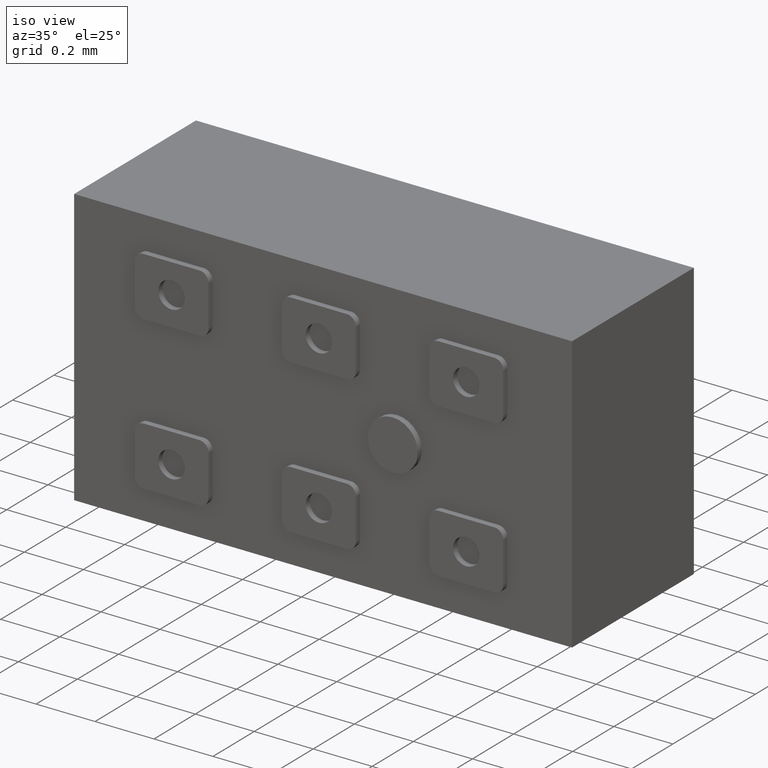
[diagram: clean part render]
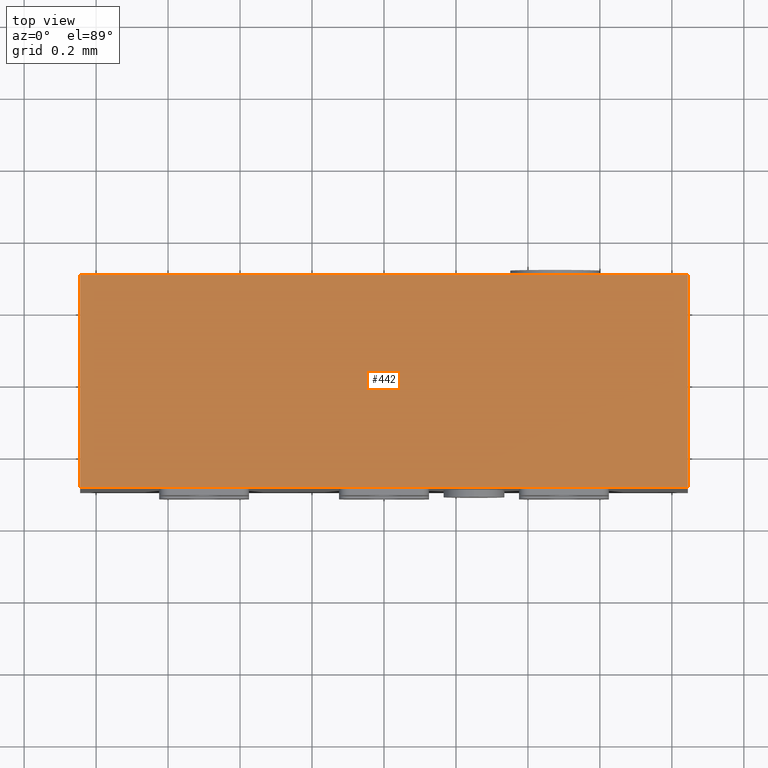
[diagram: tour spotlight — one face highlighted and labeled with its STEP entity id]
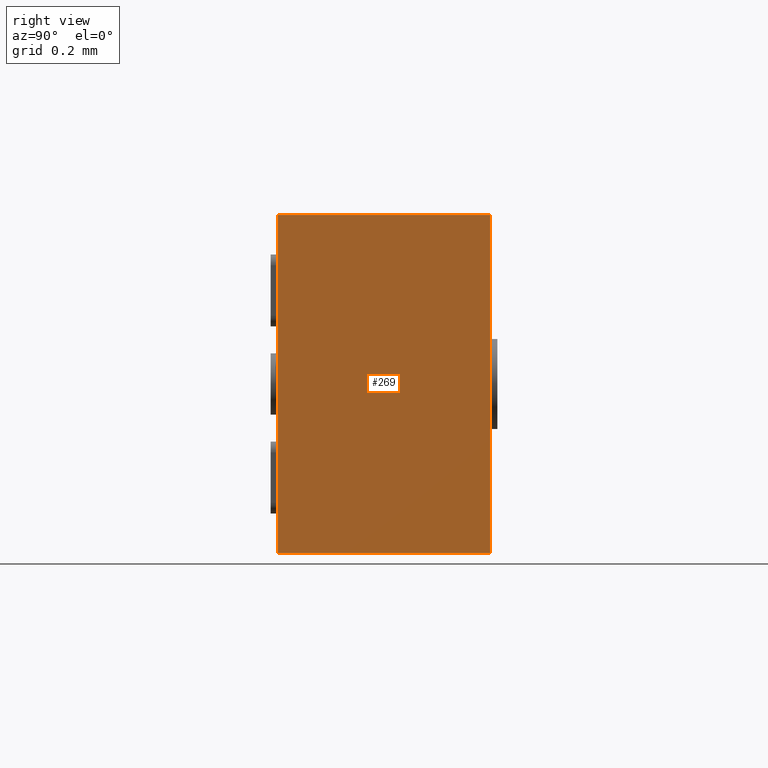
[diagram: tour spotlight — one face highlighted and labeled with its STEP entity id]
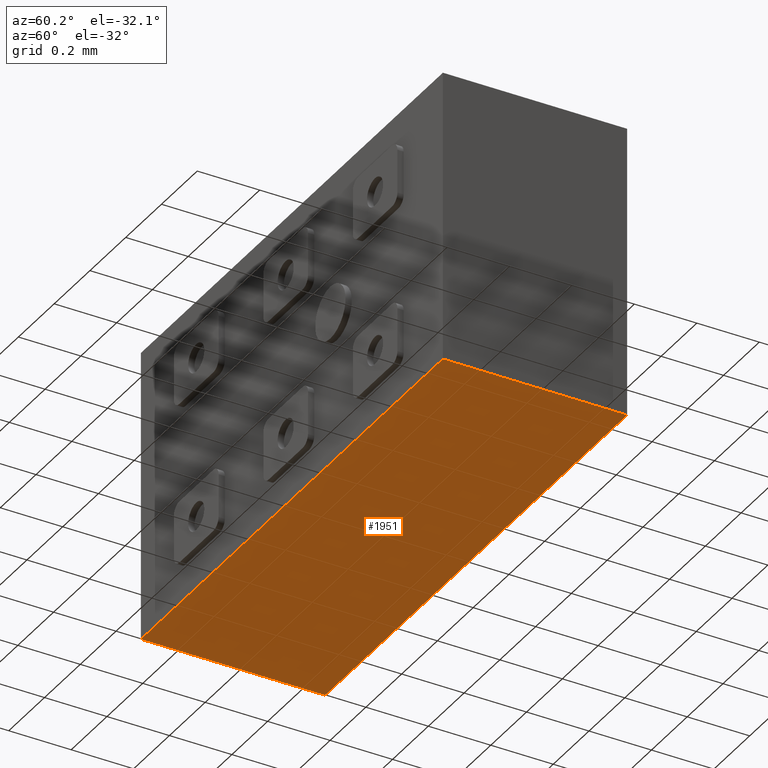
[diagram: tour spotlight — one face highlighted and labeled with its STEP entity id]
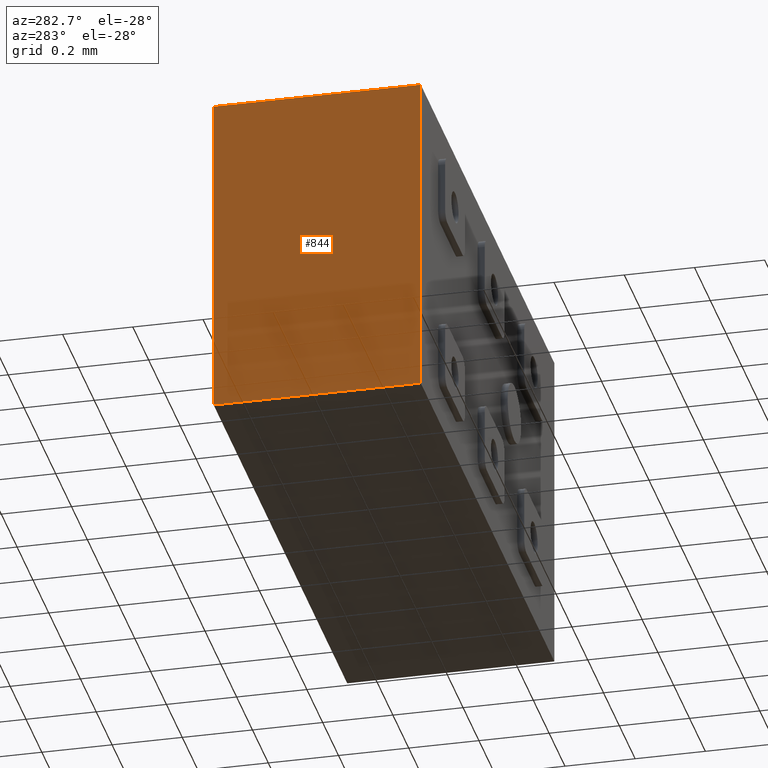
[diagram: tour spotlight — one face highlighted and labeled with its STEP entity id]
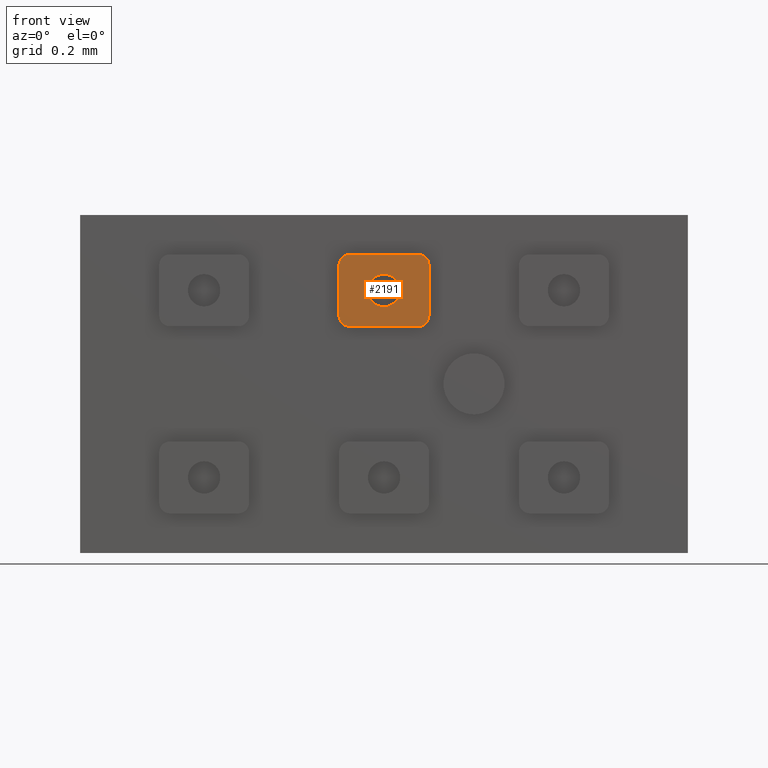
[diagram: tour spotlight — one face highlighted and labeled with its STEP entity id]
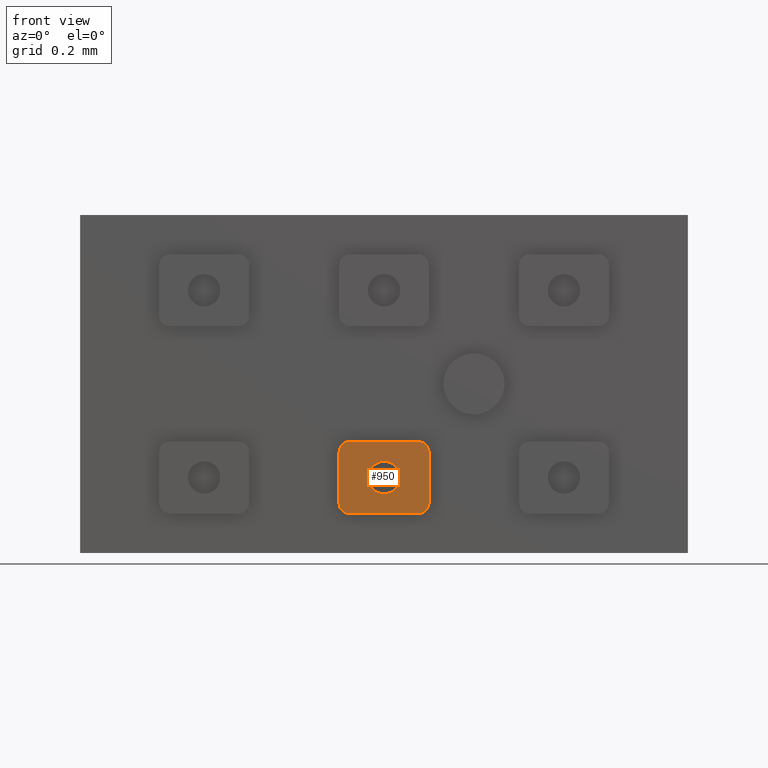
[diagram: tour spotlight — one face highlighted and labeled with its STEP entity id]
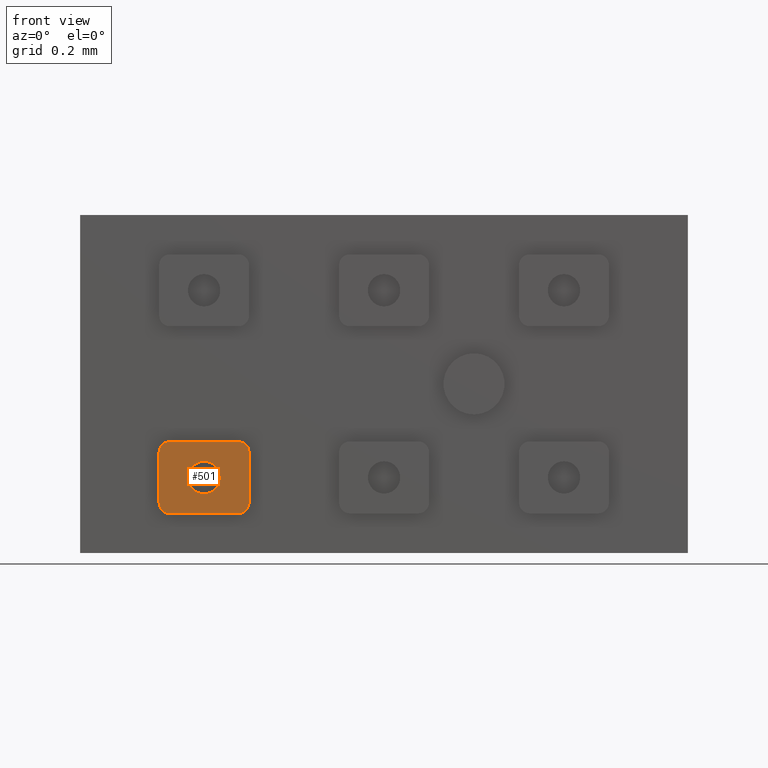
[diagram: tour spotlight — one face highlighted and labeled with its STEP entity id]
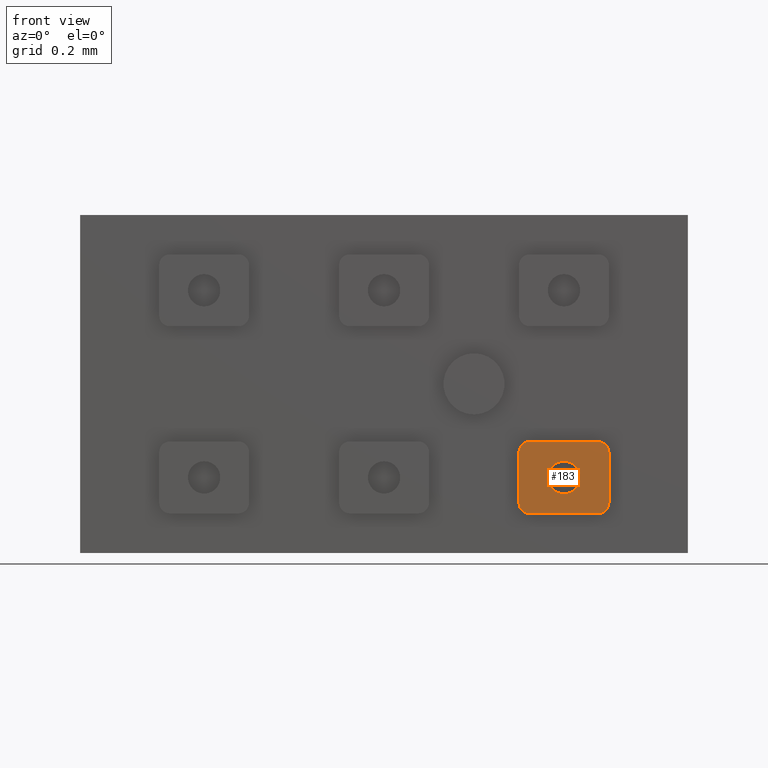
[diagram: tour spotlight — one face highlighted and labeled with its STEP entity id]
A machine part: a face-by-face anatomy tour. The part has 84 B-rep faces; the first image is the clean iso view, then the 8 largest visible faces are spotlighted one at a time (largest first), each with its STEP entity span.

Face 1 — top view, entity #442. In plain terms, the highlighted planar face has unit normal (-0, 0, -1).
Definition (entity closure, byte-faithful):
#56 = CARTESIAN_POINT ( 'NONE',  ( -0.8445000000000001394, 0.2949999999999999845, 0.4695000000000000284 ) ) ;
#275 = CARTESIAN_POINT ( 'NONE',  ( 0.8444999999999998064, -0.2949999999999999845, 0.4694999999999998619 ) ) ;
#442 = ADVANCED_FACE ( 'NONE', ( #2563 ), #1575, .F. ) ;
#524 = LINE ( 'NONE', #1510, #2504 ) ;
#548 = AXIS2_PLACEMENT_3D ( 'NONE', #2540, #1550, #1167 ) ;
#627 = CARTESIAN_POINT ( 'NONE',  ( -0.8445000000000001394, -0.2949999999999999845, 0.4695000000000000284 ) ) ;
#657 = LINE ( 'NONE', #275, #2243 ) ;
#694 = ORIENTED_EDGE ( 'NONE', *, *, #919, .T. ) ;
#791 = VERTEX_POINT ( 'NONE', #627 ) ;
#830 = ORIENTED_EDGE ( 'NONE', *, *, #2158, .T. ) ;
#893 = EDGE_LOOP ( 'NONE', ( #694, #2554, #2370, #830 ) ) ;
#919 = EDGE_CURVE ( 'NONE', #791, #1594, #657, .T. ) ;
#965 = CARTESIAN_POINT ( 'NONE',  ( 0.8444999999999998064, 0.2949999999999999845, 0.4694999999999998619 ) ) ;
#981 = EDGE_CURVE ( 'NONE', #1401, #1615, #524, .T. ) ;
#1004 = DIRECTION ( 'NONE',  ( -0.000000000000000000, -1.000000000000000000, -0.000000000000000000 ) ) ;
#1167 = DIRECTION ( 'NONE',  ( -1.000000000000000000, 0.000000000000000000, 9.628793716567535879E-17 ) ) ;
#1251 = DIRECTION ( 'NONE',  ( 1.000000000000000000, -0.000000000000000000, -9.628793716567534647E-17 ) ) ;
#1300 = DIRECTION ( 'NONE',  ( 1.000000000000000000, -0.000000000000000000, -9.628793716567534647E-17 ) ) ;
#1401 = VERTEX_POINT ( 'NONE', #56 ) ;
#1477 = CARTESIAN_POINT ( 'NONE',  ( 0.8444999999999998064, 0.2949999999999999845, 0.4694999999999998619 ) ) ;
#1510 = CARTESIAN_POINT ( 'NONE',  ( 0.8444999999999998064, 0.2949999999999999845, 0.4694999999999998619 ) ) ;
#1550 = DIRECTION ( 'NONE',  ( -9.628793716567535879E-17, 0.000000000000000000, -1.000000000000000000 ) ) ;
#1573 = LINE ( 'NONE', #2367, #2245 ) ;
#1575 = PLANE ( 'NONE',  #548 ) ;
#1594 = VERTEX_POINT ( 'NONE', #2057 ) ;
#1595 = VECTOR ( 'NONE', #2264, 1000.000000000000000 ) ;
#1615 = VERTEX_POINT ( 'NONE', #965 ) ;
#1677 = LINE ( 'NONE', #1477, #1595 ) ;
#2057 = CARTESIAN_POINT ( 'NONE',  ( 0.8444999999999998064, -0.2949999999999999845, 0.4694999999999998619 ) ) ;
#2158 = EDGE_CURVE ( 'NONE', #1401, #791, #1573, .T. ) ;
#2243 = VECTOR ( 'NONE', #1251, 1000.000000000000000 ) ;
#2245 = VECTOR ( 'NONE', #1004, 1000.000000000000000 ) ;
#2264 = DIRECTION ( 'NONE',  ( -0.000000000000000000, -1.000000000000000000, -0.000000000000000000 ) ) ;
#2367 = CARTESIAN_POINT ( 'NONE',  ( -0.8445000000000001394, 0.2949999999999999845, 0.4695000000000000284 ) ) ;
#2370 = ORIENTED_EDGE ( 'NONE', *, *, #981, .F. ) ;
#2504 = VECTOR ( 'NONE', #1300, 1000.000000000000000 ) ;
#2535 = EDGE_CURVE ( 'NONE', #1615, #1594, #1677, .T. ) ;
#2540 = CARTESIAN_POINT ( 'NONE',  ( 0.8444999999999998064, 0.2949999999999999845, 0.4694999999999998619 ) ) ;
#2554 = ORIENTED_EDGE ( 'NONE', *, *, #2535, .F. ) ;
#2563 = FACE_OUTER_BOUND ( 'NONE', #893, .T. ) ;

Face 2 — right view, entity #269. In plain terms, the highlighted planar face has unit normal (-1, 0, -0).
Definition (entity closure, byte-faithful):
#107 = VECTOR ( 'NONE', #1616, 1000.000000000000000 ) ;
#199 = VECTOR ( 'NONE', #1206, 1000.000000000000000 ) ;
#269 = ADVANCED_FACE ( 'NONE', ( #1887 ), #2087, .F. ) ;
#401 = ORIENTED_EDGE ( 'NONE', *, *, #1503, .F. ) ;
#445 = CARTESIAN_POINT ( 'NONE',  ( 0.8444999999999998064, -0.2949999999999999845, 0.4694999999999998619 ) ) ;
#558 = DIRECTION ( 'NONE',  ( -1.154634901475510774E-16, 0.000000000000000000, 1.000000000000000000 ) ) ;
#659 = CARTESIAN_POINT ( 'NONE',  ( 0.8444999999999999174, 0.2949999999999999845, -0.4695000000000001394 ) ) ;
#768 = CARTESIAN_POINT ( 'NONE',  ( 0.8444999999999999174, -0.2949999999999999845, -0.4695000000000001394 ) ) ;
#771 = ORIENTED_EDGE ( 'NONE', *, *, #1853, .T. ) ;
#809 = EDGE_LOOP ( 'NONE', ( #771, #2109, #401, #1087 ) ) ;
#965 = CARTESIAN_POINT ( 'NONE',  ( 0.8444999999999998064, 0.2949999999999999845, 0.4694999999999998619 ) ) ;
#1087 = ORIENTED_EDGE ( 'NONE', *, *, #2535, .T. ) ;
#1206 = DIRECTION ( 'NONE',  ( 1.154634901475510774E-16, 0.000000000000000000, -1.000000000000000000 ) ) ;
#1258 = LINE ( 'NONE', #445, #107 ) ;
#1336 = DIRECTION ( 'NONE',  ( -1.000000000000000000, 0.000000000000000000, -1.154634901475510774E-16 ) ) ;
#1477 = CARTESIAN_POINT ( 'NONE',  ( 0.8444999999999998064, 0.2949999999999999845, 0.4694999999999998619 ) ) ;
#1503 = EDGE_CURVE ( 'NONE', #1615, #2325, #2388, .T. ) ;
#1594 = VERTEX_POINT ( 'NONE', #2057 ) ;
#1595 = VECTOR ( 'NONE', #2264, 1000.000000000000000 ) ;
#1615 = VERTEX_POINT ( 'NONE', #965 ) ;
#1616 = DIRECTION ( 'NONE',  ( 1.154634901475510774E-16, 0.000000000000000000, -1.000000000000000000 ) ) ;
#1635 = AXIS2_PLACEMENT_3D ( 'NONE', #2506, #1336, #558 ) ;
#1677 = LINE ( 'NONE', #1477, #1595 ) ;
#1722 = CARTESIAN_POINT ( 'NONE',  ( 0.8444999999999999174, 0.2949999999999999845, -0.4695000000000001394 ) ) ;
#1731 = VERTEX_POINT ( 'NONE', #768 ) ;
#1853 = EDGE_CURVE ( 'NONE', #1594, #1731, #1258, .T. ) ;
#1887 = FACE_OUTER_BOUND ( 'NONE', #809, .T. ) ;
#1888 = LINE ( 'NONE', #1722, #2356 ) ;
#1906 = DIRECTION ( 'NONE',  ( -0.000000000000000000, -1.000000000000000000, -0.000000000000000000 ) ) ;
#2057 = CARTESIAN_POINT ( 'NONE',  ( 0.8444999999999998064, -0.2949999999999999845, 0.4694999999999998619 ) ) ;
#2087 = PLANE ( 'NONE',  #1635 ) ;
#2109 = ORIENTED_EDGE ( 'NONE', *, *, #2548, .F. ) ;
#2189 = CARTESIAN_POINT ( 'NONE',  ( 0.8444999999999998064, 0.2949999999999999845, 0.4694999999999998619 ) ) ;
#2264 = DIRECTION ( 'NONE',  ( -0.000000000000000000, -1.000000000000000000, -0.000000000000000000 ) ) ;
#2325 = VERTEX_POINT ( 'NONE', #659 ) ;
#2356 = VECTOR ( 'NONE', #1906, 1000.000000000000000 ) ;
#2388 = LINE ( 'NONE', #2189, #199 ) ;
#2506 = CARTESIAN_POINT ( 'NONE',  ( 0.8444999999999998064, 0.2949999999999999845, 0.4694999999999998619 ) ) ;
#2535 = EDGE_CURVE ( 'NONE', #1615, #1594, #1677, .T. ) ;
#2548 = EDGE_CURVE ( 'NONE', #2325, #1731, #1888, .T. ) ;

Face 3 — auxiliary view, entity #1951. In plain terms, the highlighted planar face has unit normal (0, -0, 1).
Definition (entity closure, byte-faithful):
#110 = CARTESIAN_POINT ( 'NONE',  ( -0.8445000000000001394, -0.2949999999999999845, -0.4694999999999999174 ) ) ;
#166 = EDGE_CURVE ( 'NONE', #2325, #1350, #2069, .T. ) ;
#240 = CARTESIAN_POINT ( 'NONE',  ( 0.8444999999999999174, -0.2949999999999999845, -0.4695000000000001394 ) ) ;
#314 = VERTEX_POINT ( 'NONE', #110 ) ;
#355 = DIRECTION ( 'NONE',  ( 1.000000000000000000, 0.000000000000000000, -1.283839162209004620E-16 ) ) ;
#387 = CARTESIAN_POINT ( 'NONE',  ( -0.8445000000000001394, 0.2949999999999999845, -0.4694999999999999174 ) ) ;
#395 = DIRECTION ( 'NONE',  ( -0.000000000000000000, -1.000000000000000000, -0.000000000000000000 ) ) ;
#427 = VECTOR ( 'NONE', #1469, 1000.000000000000000 ) ;
#512 = CARTESIAN_POINT ( 'NONE',  ( 0.8444999999999999174, 0.2949999999999999845, -0.4695000000000001394 ) ) ;
#560 = ORIENTED_EDGE ( 'NONE', *, *, #166, .F. ) ;
#564 = EDGE_CURVE ( 'NONE', #1350, #314, #1776, .T. ) ;
#569 = CARTESIAN_POINT ( 'NONE',  ( -0.8445000000000001394, 0.2949999999999999845, -0.4694999999999999174 ) ) ;
#659 = CARTESIAN_POINT ( 'NONE',  ( 0.8444999999999999174, 0.2949999999999999845, -0.4695000000000001394 ) ) ;
#714 = EDGE_LOOP ( 'NONE', ( #1153, #967, #560, #1697 ) ) ;
#768 = CARTESIAN_POINT ( 'NONE',  ( 0.8444999999999999174, -0.2949999999999999845, -0.4695000000000001394 ) ) ;
#770 = AXIS2_PLACEMENT_3D ( 'NONE', #512, #1941, #355 ) ;
#902 = FACE_OUTER_BOUND ( 'NONE', #714, .T. ) ;
#967 = ORIENTED_EDGE ( 'NONE', *, *, #564, .F. ) ;
#1153 = ORIENTED_EDGE ( 'NONE', *, *, #1893, .T. ) ;
#1233 = LINE ( 'NONE', #240, #427 ) ;
#1261 = DIRECTION ( 'NONE',  ( -1.000000000000000000, 0.000000000000000000, 1.283839162209004620E-16 ) ) ;
#1349 = VECTOR ( 'NONE', #1261, 1000.000000000000000 ) ;
#1350 = VERTEX_POINT ( 'NONE', #569 ) ;
#1469 = DIRECTION ( 'NONE',  ( -1.000000000000000000, 0.000000000000000000, 1.283839162209004620E-16 ) ) ;
#1697 = ORIENTED_EDGE ( 'NONE', *, *, #2548, .T. ) ;
#1722 = CARTESIAN_POINT ( 'NONE',  ( 0.8444999999999999174, 0.2949999999999999845, -0.4695000000000001394 ) ) ;
#1731 = VERTEX_POINT ( 'NONE', #768 ) ;
#1776 = LINE ( 'NONE', #387, #2090 ) ;
#1888 = LINE ( 'NONE', #1722, #2356 ) ;
#1893 = EDGE_CURVE ( 'NONE', #1731, #314, #1233, .T. ) ;
#1906 = DIRECTION ( 'NONE',  ( -0.000000000000000000, -1.000000000000000000, -0.000000000000000000 ) ) ;
#1941 = DIRECTION ( 'NONE',  ( 1.283839162209004620E-16, -0.000000000000000000, 1.000000000000000000 ) ) ;
#1951 = ADVANCED_FACE ( 'NONE', ( #902 ), #2538, .F. ) ;
#2069 = LINE ( 'NONE', #2443, #1349 ) ;
#2090 = VECTOR ( 'NONE', #395, 1000.000000000000000 ) ;
#2325 = VERTEX_POINT ( 'NONE', #659 ) ;
#2356 = VECTOR ( 'NONE', #1906, 1000.000000000000000 ) ;
#2443 = CARTESIAN_POINT ( 'NONE',  ( 0.8444999999999999174, 0.2949999999999999845, -0.4695000000000001394 ) ) ;
#2538 = PLANE ( 'NONE',  #770 ) ;
#2548 = EDGE_CURVE ( 'NONE', #2325, #1731, #1888, .T. ) ;

Face 4 — auxiliary view, entity #844. In plain terms, the highlighted planar face has unit normal (1, -0, 0).
Definition (entity closure, byte-faithful):
#41 = FACE_OUTER_BOUND ( 'NONE', #2212, .T. ) ;
#56 = CARTESIAN_POINT ( 'NONE',  ( -0.8445000000000001394, 0.2949999999999999845, 0.4695000000000000284 ) ) ;
#110 = CARTESIAN_POINT ( 'NONE',  ( -0.8445000000000001394, -0.2949999999999999845, -0.4694999999999999174 ) ) ;
#148 = ORIENTED_EDGE ( 'NONE', *, *, #745, .F. ) ;
#237 = VECTOR ( 'NONE', #396, 1000.000000000000000 ) ;
#314 = VERTEX_POINT ( 'NONE', #110 ) ;
#337 = LINE ( 'NONE', #2507, #1023 ) ;
#387 = CARTESIAN_POINT ( 'NONE',  ( -0.8445000000000001394, 0.2949999999999999845, -0.4694999999999999174 ) ) ;
#395 = DIRECTION ( 'NONE',  ( -0.000000000000000000, -1.000000000000000000, -0.000000000000000000 ) ) ;
#396 = DIRECTION ( 'NONE',  ( -0.000000000000000000, -0.000000000000000000, 1.000000000000000000 ) ) ;
#564 = EDGE_CURVE ( 'NONE', #1350, #314, #1776, .T. ) ;
#569 = CARTESIAN_POINT ( 'NONE',  ( -0.8445000000000001394, 0.2949999999999999845, -0.4694999999999999174 ) ) ;
#608 = DIRECTION ( 'NONE',  ( 0.000000000000000000, 0.000000000000000000, -1.000000000000000000 ) ) ;
#627 = CARTESIAN_POINT ( 'NONE',  ( -0.8445000000000001394, -0.2949999999999999845, 0.4695000000000000284 ) ) ;
#745 = EDGE_CURVE ( 'NONE', #1350, #1401, #2397, .T. ) ;
#791 = VERTEX_POINT ( 'NONE', #627 ) ;
#796 = PLANE ( 'NONE',  #1713 ) ;
#844 = ADVANCED_FACE ( 'NONE', ( #41 ), #796, .F. ) ;
#1004 = DIRECTION ( 'NONE',  ( -0.000000000000000000, -1.000000000000000000, -0.000000000000000000 ) ) ;
#1022 = DIRECTION ( 'NONE',  ( 1.000000000000000000, -0.000000000000000000, 0.000000000000000000 ) ) ;
#1023 = VECTOR ( 'NONE', #1917, 1000.000000000000000 ) ;
#1238 = CARTESIAN_POINT ( 'NONE',  ( -0.8445000000000001394, 0.2949999999999999845, 0.4695000000000000284 ) ) ;
#1350 = VERTEX_POINT ( 'NONE', #569 ) ;
#1401 = VERTEX_POINT ( 'NONE', #56 ) ;
#1573 = LINE ( 'NONE', #2367, #2245 ) ;
#1589 = CARTESIAN_POINT ( 'NONE',  ( -0.8445000000000001394, 0.2949999999999999845, 0.4695000000000000284 ) ) ;
#1640 = ORIENTED_EDGE ( 'NONE', *, *, #2158, .F. ) ;
#1713 = AXIS2_PLACEMENT_3D ( 'NONE', #1238, #1022, #608 ) ;
#1776 = LINE ( 'NONE', #387, #2090 ) ;
#1917 = DIRECTION ( 'NONE',  ( -0.000000000000000000, -0.000000000000000000, 1.000000000000000000 ) ) ;
#2090 = VECTOR ( 'NONE', #395, 1000.000000000000000 ) ;
#2157 = ORIENTED_EDGE ( 'NONE', *, *, #2476, .T. ) ;
#2158 = EDGE_CURVE ( 'NONE', #1401, #791, #1573, .T. ) ;
#2212 = EDGE_LOOP ( 'NONE', ( #2157, #1640, #148, #2257 ) ) ;
#2245 = VECTOR ( 'NONE', #1004, 1000.000000000000000 ) ;
#2257 = ORIENTED_EDGE ( 'NONE', *, *, #564, .T. ) ;
#2367 = CARTESIAN_POINT ( 'NONE',  ( -0.8445000000000001394, 0.2949999999999999845, 0.4695000000000000284 ) ) ;
#2397 = LINE ( 'NONE', #1589, #237 ) ;
#2476 = EDGE_CURVE ( 'NONE', #314, #791, #337, .T. ) ;
#2507 = CARTESIAN_POINT ( 'NONE',  ( -0.8445000000000001394, -0.2949999999999999845, 0.4695000000000000284 ) ) ;

Face 5 — front view, entity #2191. In plain terms, the highlighted planar face has unit normal (0, 1, 0).
Definition (entity closure, byte-faithful):
#4 = EDGE_CURVE ( 'NONE', #1850, #1989, #790, .T. ) ;
#126 = DIRECTION ( 'NONE',  ( 0.000000000000000000, 1.000000000000000000, 0.000000000000000000 ) ) ;
#130 = VERTEX_POINT ( 'NONE', #1280 ) ;
#142 = CARTESIAN_POINT ( 'NONE',  ( 0.09500000000000002887, -0.3149999999999999467, 0.1600000000000035560 ) ) ;
#181 = DIRECTION ( 'NONE',  ( 0.000000000000000000, 0.000000000000000000, 1.000000000000000000 ) ) ;
#232 = AXIS2_PLACEMENT_3D ( 'NONE', #1036, #1419, #1431 ) ;
#284 = CARTESIAN_POINT ( 'NONE',  ( -0.09500000000000002887, -0.3149999999999999467, 0.3600000000000035394 ) ) ;
#289 = DIRECTION ( 'NONE',  ( 0.000000000000000000, 0.000000000000000000, -1.000000000000000000 ) ) ;
#334 = ORIENTED_EDGE ( 'NONE', *, *, #1412, .F. ) ;
#360 = DIRECTION ( 'NONE',  ( 0.000000000000000000, 1.000000000000000000, 0.000000000000000000 ) ) ;
#367 = EDGE_CURVE ( 'NONE', #679, #1850, #2491, .T. ) ;
#394 = VERTEX_POINT ( 'NONE', #1916 ) ;
#415 = DIRECTION ( 'NONE',  ( 0.000000000000000000, 1.000000000000000000, 0.000000000000000000 ) ) ;
#434 = DIRECTION ( 'NONE',  ( 0.000000000000000000, 0.000000000000000000, 1.000000000000000000 ) ) ;
#507 = DIRECTION ( 'NONE',  ( 1.000000000000000000, 0.000000000000000000, 0.000000000000000000 ) ) ;
#521 = CARTESIAN_POINT ( 'NONE',  ( -0.09500000000000002887, -0.3149999999999999467, 0.1900000000000035272 ) ) ;
#546 = ORIENTED_EDGE ( 'NONE', *, *, #1892, .T. ) ;
#550 = VERTEX_POINT ( 'NONE', #1597 ) ;
#561 = VECTOR ( 'NONE', #181, 1000.000000000000000 ) ;
#582 = CARTESIAN_POINT ( 'NONE',  ( -0.1250000000000000000, -0.3149999999999999467, 0.1900000000000035272 ) ) ;
#625 = ORIENTED_EDGE ( 'NONE', *, *, #2556, .F. ) ;
#632 = VECTOR ( 'NONE', #2333, 1000.000000000000000 ) ;
#633 = AXIS2_PLACEMENT_3D ( 'NONE', #1309, #2071, #289 ) ;
#642 = AXIS2_PLACEMENT_3D ( 'NONE', #2215, #678, #434 ) ;
#647 = VECTOR ( 'NONE', #507, 1000.000000000000000 ) ;
#663 = CARTESIAN_POINT ( 'NONE',  ( -0.09500000000000002887, -0.3149999999999999467, 0.1600000000000035560 ) ) ;
#678 = DIRECTION ( 'NONE',  ( 0.000000000000000000, 1.000000000000000000, 0.000000000000000000 ) ) ;
#679 = VERTEX_POINT ( 'NONE', #142 ) ;
#715 = CARTESIAN_POINT ( 'NONE',  ( -0.09500000000000002887, -0.3149999999999999467, 0.1600000000000035560 ) ) ;
#736 = CARTESIAN_POINT ( 'NONE',  ( 0.1250000000000000000, -0.3149999999999999467, 0.3300000000000035683 ) ) ;
#790 = CIRCLE ( 'NONE', #1440, 0.02999999999999997113 ) ;
#818 = FACE_OUTER_BOUND ( 'NONE', #1316, .T. ) ;
#923 = DIRECTION ( 'NONE',  ( 0.000000000000000000, 0.000000000000000000, 1.000000000000000000 ) ) ;
#996 = CIRCLE ( 'NONE', #232, 0.02999999999999997113 ) ;
#1000 = VECTOR ( 'NONE', #1505, 1000.000000000000000 ) ;
#1029 = DIRECTION ( 'NONE',  ( 0.000000000000000000, 1.000000000000000000, 0.000000000000000000 ) ) ;
#1036 = CARTESIAN_POINT ( 'NONE',  ( 0.09500000000000002887, -0.3149999999999999467, 0.1900000000000035272 ) ) ;
#1080 = CARTESIAN_POINT ( 'NONE',  ( 0.1250000000000000000, -0.3149999999999999467, 0.1900000000000035272 ) ) ;
#1124 = VERTEX_POINT ( 'NONE', #736 ) ;
#1155 = CARTESIAN_POINT ( 'NONE',  ( -0.09500000000000002887, -0.3149999999999999467, 0.3300000000000035683 ) ) ;
#1169 = DIRECTION ( 'NONE',  ( 0.000000000000000000, 0.000000000000000000, 1.000000000000000000 ) ) ;
#1223 = CIRCLE ( 'NONE', #2214, 0.02999999999999997113 ) ;
#1227 = CIRCLE ( 'NONE', #633, 0.02999999999999997113 ) ;
#1280 = CARTESIAN_POINT ( 'NONE',  ( 5.510910596163088785E-18, -0.3149999999999999467, 0.2150000000000035771 ) ) ;
#1309 = CARTESIAN_POINT ( 'NONE',  ( 0.09500000000000002887, -0.3149999999999999467, 0.3300000000000035683 ) ) ;
#1316 = EDGE_LOOP ( 'NONE', ( #1467, #2417, #334, #1707, #625, #2256, #1504, #1377 ) ) ;
#1377 = ORIENTED_EDGE ( 'NONE', *, *, #2083, .F. ) ;
#1400 = LINE ( 'NONE', #582, #561 ) ;
#1411 = DIRECTION ( 'NONE',  ( 0.000000000000000000, 0.000000000000000000, 1.000000000000000000 ) ) ;
#1412 = EDGE_CURVE ( 'NONE', #1783, #679, #996, .T. ) ;
#1413 = VERTEX_POINT ( 'NONE', #2210 ) ;
#1419 = DIRECTION ( 'NONE',  ( 0.000000000000000000, 1.000000000000000000, 0.000000000000000000 ) ) ;
#1431 = DIRECTION ( 'NONE',  ( 0.000000000000000000, 0.000000000000000000, 1.000000000000000000 ) ) ;
#1440 = AXIS2_PLACEMENT_3D ( 'NONE', #521, #126, #923 ) ;
#1467 = ORIENTED_EDGE ( 'NONE', *, *, #4, .F. ) ;
#1504 = ORIENTED_EDGE ( 'NONE', *, *, #1725, .F. ) ;
#1505 = DIRECTION ( 'NONE',  ( -1.000000000000000000, -0.000000000000000000, -0.000000000000000000 ) ) ;
#1531 = EDGE_LOOP ( 'NONE', ( #2290, #546 ) ) ;
#1536 = CARTESIAN_POINT ( 'NONE',  ( -0.1250000000000000000, -0.3149999999999999467, 0.1900000000000035272 ) ) ;
#1547 = CARTESIAN_POINT ( 'NONE',  ( 0.1250000000000000000, -0.3149999999999999467, 0.1900000000000035272 ) ) ;
#1593 = AXIS2_PLACEMENT_3D ( 'NONE', #2142, #360, #1169 ) ;
#1597 = CARTESIAN_POINT ( 'NONE',  ( 0.000000000000000000, -0.3149999999999999467, 0.3050000000000035461 ) ) ;
#1600 = PLANE ( 'NONE',  #2299 ) ;
#1627 = CIRCLE ( 'NONE', #1593, 0.04500000000000001221 ) ;
#1707 = ORIENTED_EDGE ( 'NONE', *, *, #1996, .F. ) ;
#1716 = EDGE_CURVE ( 'NONE', #550, #130, #1627, .T. ) ;
#1725 = EDGE_CURVE ( 'NONE', #394, #1747, #1223, .T. ) ;
#1743 = LINE ( 'NONE', #1547, #632 ) ;
#1747 = VERTEX_POINT ( 'NONE', #284 ) ;
#1783 = VERTEX_POINT ( 'NONE', #1080 ) ;
#1850 = VERTEX_POINT ( 'NONE', #663 ) ;
#1892 = EDGE_CURVE ( 'NONE', #130, #550, #2313, .T. ) ;
#1916 = CARTESIAN_POINT ( 'NONE',  ( -0.1250000000000000000, -0.3149999999999999467, 0.3300000000000035683 ) ) ;
#1986 = FACE_BOUND ( 'NONE', #1531, .T. ) ;
#1989 = VERTEX_POINT ( 'NONE', #1536 ) ;
#1996 = EDGE_CURVE ( 'NONE', #1124, #1783, #1743, .T. ) ;
#2071 = DIRECTION ( 'NONE',  ( 0.000000000000000000, 1.000000000000000000, -0.000000000000000000 ) ) ;
#2076 = LINE ( 'NONE', #2532, #647 ) ;
#2083 = EDGE_CURVE ( 'NONE', #1989, #394, #1400, .T. ) ;
#2142 = CARTESIAN_POINT ( 'NONE',  ( 0.000000000000000000, -0.3149999999999999467, 0.2600000000000035616 ) ) ;
#2191 = ADVANCED_FACE ( 'NONE', ( #1986, #818 ), #1600, .F. ) ;
#2200 = CARTESIAN_POINT ( 'NONE',  ( -0.09500000000000002887, -0.3149999999999999467, 0.1900000000000035272 ) ) ;
#2210 = CARTESIAN_POINT ( 'NONE',  ( 0.09500000000000002887, -0.3149999999999999467, 0.3600000000000035394 ) ) ;
#2214 = AXIS2_PLACEMENT_3D ( 'NONE', #1155, #1029, #1411 ) ;
#2215 = CARTESIAN_POINT ( 'NONE',  ( 0.000000000000000000, -0.3149999999999999467, 0.2600000000000035616 ) ) ;
#2237 = DIRECTION ( 'NONE',  ( 0.000000000000000000, -0.000000000000000000, 1.000000000000000000 ) ) ;
#2256 = ORIENTED_EDGE ( 'NONE', *, *, #2345, .F. ) ;
#2290 = ORIENTED_EDGE ( 'NONE', *, *, #1716, .T. ) ;
#2299 = AXIS2_PLACEMENT_3D ( 'NONE', #2200, #415, #2237 ) ;
#2313 = CIRCLE ( 'NONE', #642, 0.04500000000000001221 ) ;
#2333 = DIRECTION ( 'NONE',  ( -0.000000000000000000, -0.000000000000000000, -1.000000000000000000 ) ) ;
#2345 = EDGE_CURVE ( 'NONE', #1747, #1413, #2076, .T. ) ;
#2417 = ORIENTED_EDGE ( 'NONE', *, *, #367, .F. ) ;
#2491 = LINE ( 'NONE', #715, #1000 ) ;
#2532 = CARTESIAN_POINT ( 'NONE',  ( -0.09500000000000002887, -0.3149999999999999467, 0.3600000000000035394 ) ) ;
#2556 = EDGE_CURVE ( 'NONE', #1413, #1124, #1227, .T. ) ;

Face 6 — front view, entity #950. In plain terms, the highlighted planar face has unit normal (0, 1, 0).
Definition (entity closure, byte-faithful):
#34 = EDGE_CURVE ( 'NONE', #723, #1191, #1872, .T. ) ;
#38 = DIRECTION ( 'NONE',  ( 0.000000000000000000, 0.000000000000000000, -1.000000000000000000 ) ) ;
#44 = ORIENTED_EDGE ( 'NONE', *, *, #2086, .F. ) ;
#146 = AXIS2_PLACEMENT_3D ( 'NONE', #706, #508, #870 ) ;
#158 = VECTOR ( 'NONE', #1665, 1000.000000000000000 ) ;
#164 = CIRCLE ( 'NONE', #1605, 0.04499999999999984568 ) ;
#241 = ORIENTED_EDGE ( 'NONE', *, *, #34, .F. ) ;
#248 = CARTESIAN_POINT ( 'NONE',  ( 0.000000000000000000, -0.3149999999999999467, -0.2149999999999966105 ) ) ;
#251 = ORIENTED_EDGE ( 'NONE', *, *, #1424, .F. ) ;
#297 = VERTEX_POINT ( 'NONE', #1732 ) ;
#306 = CARTESIAN_POINT ( 'NONE',  ( -0.1250000000000000000, -0.3149999999999999467, -0.1899999999999964773 ) ) ;
#323 = ORIENTED_EDGE ( 'NONE', *, *, #797, .T. ) ;
#329 = CARTESIAN_POINT ( 'NONE',  ( -0.09500000000000002887, -0.3149999999999999467, -0.3599999999999964895 ) ) ;
#338 = ORIENTED_EDGE ( 'NONE', *, *, #1567, .F. ) ;
#345 = AXIS2_PLACEMENT_3D ( 'NONE', #1845, #2056, #877 ) ;
#508 = DIRECTION ( 'NONE',  ( 0.000000000000000000, 1.000000000000000000, 0.000000000000000000 ) ) ;
#597 = CIRCLE ( 'NONE', #345, 0.04499999999999984568 ) ;
#617 = CARTESIAN_POINT ( 'NONE',  ( -0.1250000000000000000, -0.3149999999999999467, -0.3299999999999965183 ) ) ;
#624 = VERTEX_POINT ( 'NONE', #1352 ) ;
#664 = ORIENTED_EDGE ( 'NONE', *, *, #969, .F. ) ;
#669 = ORIENTED_EDGE ( 'NONE', *, *, #1689, .F. ) ;
#687 = FACE_OUTER_BOUND ( 'NONE', #801, .T. ) ;
#706 = CARTESIAN_POINT ( 'NONE',  ( -0.09500000000000002887, -0.3149999999999999467, -0.3299999999999965183 ) ) ;
#723 = VERTEX_POINT ( 'NONE', #2136 ) ;
#775 = DIRECTION ( 'NONE',  ( 0.000000000000000000, 0.000000000000000000, 1.000000000000000000 ) ) ;
#789 = EDGE_CURVE ( 'NONE', #1750, #2445, #2016, .T. ) ;
#797 = EDGE_CURVE ( 'NONE', #2110, #2319, #164, .T. ) ;
#801 = EDGE_LOOP ( 'NONE', ( #1452, #241, #251, #664, #669, #338, #44, #1669 ) ) ;
#805 = DIRECTION ( 'NONE',  ( 0.000000000000000000, 1.000000000000000000, 0.000000000000000000 ) ) ;
#827 = DIRECTION ( 'NONE',  ( 0.000000000000000000, 1.000000000000000000, 0.000000000000000000 ) ) ;
#848 = DIRECTION ( 'NONE',  ( 0.000000000000000000, 1.000000000000000000, 0.000000000000000000 ) ) ;
#862 = PLANE ( 'NONE',  #2035 ) ;
#870 = DIRECTION ( 'NONE',  ( 0.000000000000000000, 0.000000000000000000, 1.000000000000000000 ) ) ;
#877 = DIRECTION ( 'NONE',  ( 0.000000000000000000, 0.000000000000000000, 1.000000000000000000 ) ) ;
#879 = CARTESIAN_POINT ( 'NONE',  ( 0.09500000000000002887, -0.3149999999999999467, -0.1599999999999965061 ) ) ;
#944 = EDGE_CURVE ( 'NONE', #2319, #2110, #597, .T. ) ;
#947 = AXIS2_PLACEMENT_3D ( 'NONE', #2528, #1540, #38 ) ;
#950 = ADVANCED_FACE ( 'NONE', ( #2461, #687 ), #862, .F. ) ;
#969 = EDGE_CURVE ( 'NONE', #297, #624, #2302, .T. ) ;
#1047 = DIRECTION ( 'NONE',  ( 0.000000000000000000, 0.000000000000000000, 1.000000000000000000 ) ) ;
#1059 = CARTESIAN_POINT ( 'NONE',  ( -0.09500000000000002887, -0.3149999999999999467, -0.1599999999999965061 ) ) ;
#1061 = CARTESIAN_POINT ( 'NONE',  ( -0.09500000000000002887, -0.3149999999999999467, -0.1599999999999965061 ) ) ;
#1063 = VERTEX_POINT ( 'NONE', #1061 ) ;
#1075 = DIRECTION ( 'NONE',  ( -0.000000000000000000, -0.000000000000000000, -1.000000000000000000 ) ) ;
#1086 = CARTESIAN_POINT ( 'NONE',  ( -0.09500000000000002887, -0.3149999999999999467, -0.3599999999999964895 ) ) ;
#1110 = EDGE_CURVE ( 'NONE', #1191, #1750, #2351, .T. ) ;
#1136 = VECTOR ( 'NONE', #1075, 1000.000000000000000 ) ;
#1143 = VECTOR ( 'NONE', #2493, 1000.000000000000000 ) ;
#1175 = CARTESIAN_POINT ( 'NONE',  ( 5.510910596163072607E-18, -0.3149999999999999467, -0.3049999999999962741 ) ) ;
#1191 = VERTEX_POINT ( 'NONE', #329 ) ;
#1214 = CARTESIAN_POINT ( 'NONE',  ( 0.000000000000000000, -0.3149999999999999467, -0.2599999999999964562 ) ) ;
#1282 = VECTOR ( 'NONE', #1619, 1000.000000000000000 ) ;
#1344 = AXIS2_PLACEMENT_3D ( 'NONE', #2164, #1369, #775 ) ;
#1352 = CARTESIAN_POINT ( 'NONE',  ( 0.1250000000000000000, -0.3149999999999999467, -0.3299999999999965183 ) ) ;
#1369 = DIRECTION ( 'NONE',  ( 0.000000000000000000, 1.000000000000000000, 0.000000000000000000 ) ) ;
#1391 = DIRECTION ( 'NONE',  ( 0.000000000000000000, 0.000000000000000000, 1.000000000000000000 ) ) ;
#1424 = EDGE_CURVE ( 'NONE', #624, #723, #2225, .T. ) ;
#1452 = ORIENTED_EDGE ( 'NONE', *, *, #1110, .F. ) ;
#1540 = DIRECTION ( 'NONE',  ( 0.000000000000000000, 1.000000000000000000, -0.000000000000000000 ) ) ;
#1567 = EDGE_CURVE ( 'NONE', #1063, #1574, #2447, .T. ) ;
#1574 = VERTEX_POINT ( 'NONE', #879 ) ;
#1605 = AXIS2_PLACEMENT_3D ( 'NONE', #1214, #805, #1391 ) ;
#1619 = DIRECTION ( 'NONE',  ( 0.000000000000000000, 0.000000000000000000, 1.000000000000000000 ) ) ;
#1621 = CARTESIAN_POINT ( 'NONE',  ( 0.09500000000000002887, -0.3149999999999999467, -0.3299999999999965183 ) ) ;
#1631 = CARTESIAN_POINT ( 'NONE',  ( -0.09500000000000002887, -0.3149999999999999467, -0.3299999999999965183 ) ) ;
#1665 = DIRECTION ( 'NONE',  ( 1.000000000000000000, 0.000000000000000000, 0.000000000000000000 ) ) ;
#1669 = ORIENTED_EDGE ( 'NONE', *, *, #789, .F. ) ;
#1683 = CARTESIAN_POINT ( 'NONE',  ( 0.1250000000000000000, -0.3149999999999999467, -0.3299999999999965183 ) ) ;
#1689 = EDGE_CURVE ( 'NONE', #1574, #297, #2387, .T. ) ;
#1692 = AXIS2_PLACEMENT_3D ( 'NONE', #1621, #827, #1047 ) ;
#1732 = CARTESIAN_POINT ( 'NONE',  ( 0.1250000000000000000, -0.3149999999999999467, -0.1899999999999964773 ) ) ;
#1750 = VERTEX_POINT ( 'NONE', #1823 ) ;
#1823 = CARTESIAN_POINT ( 'NONE',  ( -0.1250000000000000000, -0.3149999999999999467, -0.3299999999999965183 ) ) ;
#1845 = CARTESIAN_POINT ( 'NONE',  ( 0.000000000000000000, -0.3149999999999999467, -0.2599999999999964562 ) ) ;
#1872 = LINE ( 'NONE', #1086, #1143 ) ;
#1881 = ORIENTED_EDGE ( 'NONE', *, *, #944, .T. ) ;
#1895 = DIRECTION ( 'NONE',  ( 0.000000000000000000, -0.000000000000000000, 1.000000000000000000 ) ) ;
#2016 = LINE ( 'NONE', #617, #1282 ) ;
#2035 = AXIS2_PLACEMENT_3D ( 'NONE', #1631, #848, #1895 ) ;
#2056 = DIRECTION ( 'NONE',  ( 0.000000000000000000, 1.000000000000000000, 0.000000000000000000 ) ) ;
#2086 = EDGE_CURVE ( 'NONE', #2445, #1063, #2414, .T. ) ;
#2110 = VERTEX_POINT ( 'NONE', #1175 ) ;
#2129 = EDGE_LOOP ( 'NONE', ( #1881, #323 ) ) ;
#2136 = CARTESIAN_POINT ( 'NONE',  ( 0.09500000000000002887, -0.3149999999999999467, -0.3599999999999964895 ) ) ;
#2164 = CARTESIAN_POINT ( 'NONE',  ( -0.09500000000000002887, -0.3149999999999999467, -0.1899999999999964773 ) ) ;
#2225 = CIRCLE ( 'NONE', #1692, 0.02999999999999997113 ) ;
#2302 = LINE ( 'NONE', #1683, #1136 ) ;
#2319 = VERTEX_POINT ( 'NONE', #248 ) ;
#2351 = CIRCLE ( 'NONE', #146, 0.02999999999999997113 ) ;
#2387 = CIRCLE ( 'NONE', #947, 0.02999999999999997113 ) ;
#2414 = CIRCLE ( 'NONE', #1344, 0.02999999999999997113 ) ;
#2445 = VERTEX_POINT ( 'NONE', #306 ) ;
#2447 = LINE ( 'NONE', #1059, #158 ) ;
#2461 = FACE_BOUND ( 'NONE', #2129, .T. ) ;
#2493 = DIRECTION ( 'NONE',  ( -1.000000000000000000, -0.000000000000000000, -0.000000000000000000 ) ) ;
#2528 = CARTESIAN_POINT ( 'NONE',  ( 0.09500000000000002887, -0.3149999999999999467, -0.1899999999999964773 ) ) ;

Face 7 — front view, entity #501. In plain terms, the highlighted planar face has unit normal (0, 1, 0).
Definition (entity closure, byte-faithful):
#10 = AXIS2_PLACEMENT_3D ( 'NONE', #471, #260, #2251 ) ;
#25 = VERTEX_POINT ( 'NONE', #469 ) ;
#67 = LINE ( 'NONE', #453, #1639 ) ;
#84 = DIRECTION ( 'NONE',  ( -1.000000000000000000, -0.000000000000000000, -0.000000000000000000 ) ) ;
#128 = CARTESIAN_POINT ( 'NONE',  ( -0.6250000000000000000, -0.3149999999999999467, -0.1899999999999930078 ) ) ;
#132 = CARTESIAN_POINT ( 'NONE',  ( -0.5000000000000000000, -0.3149999999999999467, -0.2599999999999929590 ) ) ;
#177 = DIRECTION ( 'NONE',  ( 1.000000000000000000, 0.000000000000000000, 0.000000000000000000 ) ) ;
#182 = EDGE_CURVE ( 'NONE', #25, #1792, #890, .T. ) ;
#186 = DIRECTION ( 'NONE',  ( 0.000000000000000000, 1.000000000000000000, 0.000000000000000000 ) ) ;
#189 = CIRCLE ( 'NONE', #777, 0.04499999999999987343 ) ;
#260 = DIRECTION ( 'NONE',  ( 0.000000000000000000, 1.000000000000000000, 0.000000000000000000 ) ) ;
#276 = DIRECTION ( 'NONE',  ( 0.000000000000000000, 0.000000000000000000, -1.000000000000000000 ) ) ;
#286 = ORIENTED_EDGE ( 'NONE', *, *, #182, .F. ) ;
#301 = VECTOR ( 'NONE', #177, 1000.000000000000000 ) ;
#371 = CIRCLE ( 'NONE', #1277, 0.02999999999999997113 ) ;
#403 = PLANE ( 'NONE',  #406 ) ;
#406 = AXIS2_PLACEMENT_3D ( 'NONE', #2195, #1202, #615 ) ;
#416 = VECTOR ( 'NONE', #983, 1000.000000000000000 ) ;
#424 = DIRECTION ( 'NONE',  ( -0.000000000000000000, -0.000000000000000000, -1.000000000000000000 ) ) ;
#453 = CARTESIAN_POINT ( 'NONE',  ( -0.5950000000000000844, -0.3149999999999999467, -0.3599999999999930478 ) ) ;
#469 = CARTESIAN_POINT ( 'NONE',  ( -0.3750000000000000000, -0.3149999999999999467, -0.1899999999999930078 ) ) ;
#471 = CARTESIAN_POINT ( 'NONE',  ( -0.5950000000000000844, -0.3149999999999999467, -0.1899999999999930078 ) ) ;
#501 = ADVANCED_FACE ( 'NONE', ( #2395, #2187 ), #403, .F. ) ;
#513 = AXIS2_PLACEMENT_3D ( 'NONE', #1329, #1922, #2341 ) ;
#544 = EDGE_CURVE ( 'NONE', #686, #915, #814, .T. ) ;
#596 = VERTEX_POINT ( 'NONE', #1365 ) ;
#615 = DIRECTION ( 'NONE',  ( 0.000000000000000000, -0.000000000000000000, 1.000000000000000000 ) ) ;
#628 = EDGE_CURVE ( 'NONE', #1933, #2078, #1303, .T. ) ;
#675 = ORIENTED_EDGE ( 'NONE', *, *, #1928, .T. ) ;
#686 = VERTEX_POINT ( 'NONE', #772 ) ;
#772 = CARTESIAN_POINT ( 'NONE',  ( -0.5950000000000000844, -0.3149999999999999467, -0.1599999999999930367 ) ) ;
#777 = AXIS2_PLACEMENT_3D ( 'NONE', #132, #918, #1127 ) ;
#793 = CARTESIAN_POINT ( 'NONE',  ( -0.5950000000000000844, -0.3149999999999999467, -0.3299999999999930766 ) ) ;
#811 = ORIENTED_EDGE ( 'NONE', *, *, #895, .F. ) ;
#814 = LINE ( 'NONE', #1021, #301 ) ;
#829 = ORIENTED_EDGE ( 'NONE', *, *, #544, .F. ) ;
#890 = LINE ( 'NONE', #1829, #1217 ) ;
#895 = EDGE_CURVE ( 'NONE', #2423, #686, #2172, .T. ) ;
#915 = VERTEX_POINT ( 'NONE', #1266 ) ;
#918 = DIRECTION ( 'NONE',  ( 0.000000000000000000, 1.000000000000000000, 0.000000000000000000 ) ) ;
#958 = CIRCLE ( 'NONE', #1118, 0.02999999999999997113 ) ;
#983 = DIRECTION ( 'NONE',  ( 0.000000000000000000, 0.000000000000000000, 1.000000000000000000 ) ) ;
#1021 = CARTESIAN_POINT ( 'NONE',  ( -0.5950000000000000844, -0.3149999999999999467, -0.1599999999999930367 ) ) ;
#1024 = CARTESIAN_POINT ( 'NONE',  ( -0.4049999999999999711, -0.3149999999999999467, -0.3299999999999930766 ) ) ;
#1031 = EDGE_LOOP ( 'NONE', ( #1364, #2046, #1311, #286, #1865, #829, #811, #2025 ) ) ;
#1118 = AXIS2_PLACEMENT_3D ( 'NONE', #1024, #1239, #2017 ) ;
#1127 = DIRECTION ( 'NONE',  ( 0.000000000000000000, 0.000000000000000000, 1.000000000000000000 ) ) ;
#1141 = DIRECTION ( 'NONE',  ( 0.000000000000000000, 0.000000000000000000, 1.000000000000000000 ) ) ;
#1202 = DIRECTION ( 'NONE',  ( 0.000000000000000000, 1.000000000000000000, 0.000000000000000000 ) ) ;
#1207 = LINE ( 'NONE', #2399, #416 ) ;
#1217 = VECTOR ( 'NONE', #424, 1000.000000000000000 ) ;
#1239 = DIRECTION ( 'NONE',  ( 0.000000000000000000, 1.000000000000000000, 0.000000000000000000 ) ) ;
#1266 = CARTESIAN_POINT ( 'NONE',  ( -0.4049999999999999711, -0.3149999999999999467, -0.1599999999999930367 ) ) ;
#1277 = AXIS2_PLACEMENT_3D ( 'NONE', #1482, #2236, #276 ) ;
#1303 = CIRCLE ( 'NONE', #513, 0.04499999999999987343 ) ;
#1311 = ORIENTED_EDGE ( 'NONE', *, *, #1437, .F. ) ;
#1329 = CARTESIAN_POINT ( 'NONE',  ( -0.5000000000000000000, -0.3149999999999999467, -0.2599999999999929590 ) ) ;
#1364 = ORIENTED_EDGE ( 'NONE', *, *, #1629, .F. ) ;
#1365 = CARTESIAN_POINT ( 'NONE',  ( -0.6250000000000000000, -0.3149999999999999467, -0.3299999999999930766 ) ) ;
#1376 = CARTESIAN_POINT ( 'NONE',  ( -0.4049999999999999711, -0.3149999999999999467, -0.3599999999999930478 ) ) ;
#1437 = EDGE_CURVE ( 'NONE', #1792, #1613, #958, .T. ) ;
#1482 = CARTESIAN_POINT ( 'NONE',  ( -0.4049999999999999711, -0.3149999999999999467, -0.1899999999999930078 ) ) ;
#1499 = EDGE_LOOP ( 'NONE', ( #2529, #675 ) ) ;
#1556 = EDGE_CURVE ( 'NONE', #1613, #2304, #67, .T. ) ;
#1596 = EDGE_CURVE ( 'NONE', #915, #25, #371, .T. ) ;
#1602 = AXIS2_PLACEMENT_3D ( 'NONE', #793, #186, #1141 ) ;
#1613 = VERTEX_POINT ( 'NONE', #1376 ) ;
#1629 = EDGE_CURVE ( 'NONE', #2304, #596, #2064, .T. ) ;
#1639 = VECTOR ( 'NONE', #84, 1000.000000000000000 ) ;
#1792 = VERTEX_POINT ( 'NONE', #2047 ) ;
#1829 = CARTESIAN_POINT ( 'NONE',  ( -0.3750000000000000000, -0.3149999999999999467, -0.3299999999999930766 ) ) ;
#1865 = ORIENTED_EDGE ( 'NONE', *, *, #1596, .F. ) ;
#1913 = CARTESIAN_POINT ( 'NONE',  ( -0.5000000000000000000, -0.3149999999999999467, -0.2149999999999931133 ) ) ;
#1922 = DIRECTION ( 'NONE',  ( 0.000000000000000000, 1.000000000000000000, 0.000000000000000000 ) ) ;
#1928 = EDGE_CURVE ( 'NONE', #2078, #1933, #189, .T. ) ;
#1933 = VERTEX_POINT ( 'NONE', #1913 ) ;
#2003 = CARTESIAN_POINT ( 'NONE',  ( -0.5950000000000000844, -0.3149999999999999467, -0.3599999999999930478 ) ) ;
#2017 = DIRECTION ( 'NONE',  ( 0.000000000000000000, 0.000000000000000000, 1.000000000000000000 ) ) ;
#2025 = ORIENTED_EDGE ( 'NONE', *, *, #2099, .F. ) ;
#2046 = ORIENTED_EDGE ( 'NONE', *, *, #1556, .F. ) ;
#2047 = CARTESIAN_POINT ( 'NONE',  ( -0.3750000000000000000, -0.3149999999999999467, -0.3299999999999930766 ) ) ;
#2064 = CIRCLE ( 'NONE', #1602, 0.02999999999999997113 ) ;
#2078 = VERTEX_POINT ( 'NONE', #2174 ) ;
#2099 = EDGE_CURVE ( 'NONE', #596, #2423, #1207, .T. ) ;
#2172 = CIRCLE ( 'NONE', #10, 0.02999999999999997113 ) ;
#2174 = CARTESIAN_POINT ( 'NONE',  ( -0.5000000000000000000, -0.3149999999999999467, -0.3049999999999928324 ) ) ;
#2187 = FACE_OUTER_BOUND ( 'NONE', #1031, .T. ) ;
#2195 = CARTESIAN_POINT ( 'NONE',  ( -0.5950000000000000844, -0.3149999999999999467, -0.3299999999999930766 ) ) ;
#2236 = DIRECTION ( 'NONE',  ( 0.000000000000000000, 1.000000000000000000, -0.000000000000000000 ) ) ;
#2251 = DIRECTION ( 'NONE',  ( 0.000000000000000000, 0.000000000000000000, 1.000000000000000000 ) ) ;
#2304 = VERTEX_POINT ( 'NONE', #2003 ) ;
#2341 = DIRECTION ( 'NONE',  ( 0.000000000000000000, 0.000000000000000000, 1.000000000000000000 ) ) ;
#2395 = FACE_BOUND ( 'NONE', #1499, .T. ) ;
#2399 = CARTESIAN_POINT ( 'NONE',  ( -0.6250000000000000000, -0.3149999999999999467, -0.3299999999999930766 ) ) ;
#2423 = VERTEX_POINT ( 'NONE', #128 ) ;
#2529 = ORIENTED_EDGE ( 'NONE', *, *, #628, .T. ) ;

Face 8 — front view, entity #183. In plain terms, the highlighted planar face has unit normal (0, 1, 0).
Definition (entity closure, byte-faithful):
#19 = DIRECTION ( 'NONE',  ( 0.000000000000000000, 0.000000000000000000, -1.000000000000000000 ) ) ;
#51 = PLANE ( 'NONE',  #99 ) ;
#66 = CARTESIAN_POINT ( 'NONE',  ( 0.5950000000000000844, -0.3149999999999999467, -0.3300000000000000155 ) ) ;
#99 = AXIS2_PLACEMENT_3D ( 'NONE', #846, #1628, #2232 ) ;
#114 = VERTEX_POINT ( 'NONE', #1907 ) ;
#183 = ADVANCED_FACE ( 'NONE', ( #1428, #1067 ), #51, .F. ) ;
#191 = CARTESIAN_POINT ( 'NONE',  ( 0.4049999999999999711, -0.3149999999999999467, -0.1599999999999999756 ) ) ;
#201 = CARTESIAN_POINT ( 'NONE',  ( 0.6250000000000000000, -0.3149999999999999467, -0.3300000000000000155 ) ) ;
#247 = DIRECTION ( 'NONE',  ( -0.000000000000000000, -0.000000000000000000, -1.000000000000000000 ) ) ;
#249 = CIRCLE ( 'NONE', #1249, 0.04500000000000001221 ) ;
#282 = ORIENTED_EDGE ( 'NONE', *, *, #908, .F. ) ;
#295 = CARTESIAN_POINT ( 'NONE',  ( 0.3750000000000000000, -0.3149999999999999467, -0.3300000000000000155 ) ) ;
#308 = VERTEX_POINT ( 'NONE', #519 ) ;
#386 = CIRCLE ( 'NONE', #1456, 0.02999999999999997113 ) ;
#417 = ORIENTED_EDGE ( 'NONE', *, *, #466, .F. ) ;
#422 = EDGE_CURVE ( 'NONE', #1860, #1097, #869, .T. ) ;
#451 = DIRECTION ( 'NONE',  ( 0.000000000000000000, 0.000000000000000000, 1.000000000000000000 ) ) ;
#466 = EDGE_CURVE ( 'NONE', #1016, #1066, #1648, .T. ) ;
#519 = CARTESIAN_POINT ( 'NONE',  ( 0.5000000000000000000, -0.3149999999999999467, -0.2149999999999999134 ) ) ;
#545 = AXIS2_PLACEMENT_3D ( 'NONE', #581, #1368, #1581 ) ;
#573 = CARTESIAN_POINT ( 'NONE',  ( 0.4049999999999999711, -0.3149999999999999467, -0.3300000000000000155 ) ) ;
#581 = CARTESIAN_POINT ( 'NONE',  ( 0.4049999999999999711, -0.3149999999999999467, -0.1899999999999999467 ) ) ;
#635 = ORIENTED_EDGE ( 'NONE', *, *, #2126, .T. ) ;
#640 = EDGE_CURVE ( 'NONE', #2337, #1016, #1973, .T. ) ;
#755 = AXIS2_PLACEMENT_3D ( 'NONE', #573, #2155, #2360 ) ;
#767 = VECTOR ( 'NONE', #2149, 1000.000000000000000 ) ;
#802 = ORIENTED_EDGE ( 'NONE', *, *, #640, .F. ) ;
#819 = VERTEX_POINT ( 'NONE', #201 ) ;
#846 = CARTESIAN_POINT ( 'NONE',  ( 0.4049999999999999711, -0.3149999999999999467, -0.3300000000000000155 ) ) ;
#866 = EDGE_CURVE ( 'NONE', #308, #1018, #249, .T. ) ;
#869 = CIRCLE ( 'NONE', #755, 0.02999999999999997113 ) ;
#908 = EDGE_CURVE ( 'NONE', #819, #1275, #386, .T. ) ;
#1016 = VERTEX_POINT ( 'NONE', #1314 ) ;
#1018 = VERTEX_POINT ( 'NONE', #2107 ) ;
#1046 = CARTESIAN_POINT ( 'NONE',  ( 0.5000000000000000000, -0.3149999999999999467, -0.2599999999999998979 ) ) ;
#1051 = EDGE_LOOP ( 'NONE', ( #1979, #1886, #282, #1265, #417, #802, #2039, #1170 ) ) ;
#1066 = VERTEX_POINT ( 'NONE', #2077 ) ;
#1067 = FACE_OUTER_BOUND ( 'NONE', #1051, .T. ) ;
#1097 = VERTEX_POINT ( 'NONE', #295 ) ;
#1170 = ORIENTED_EDGE ( 'NONE', *, *, #1876, .F. ) ;
#1228 = CARTESIAN_POINT ( 'NONE',  ( 0.6250000000000000000, -0.3149999999999999467, -0.3300000000000000155 ) ) ;
#1243 = CARTESIAN_POINT ( 'NONE',  ( 0.3750000000000000000, -0.3149999999999999467, -0.3300000000000000155 ) ) ;
#1249 = AXIS2_PLACEMENT_3D ( 'NONE', #1046, #2375, #1397 ) ;
#1265 = ORIENTED_EDGE ( 'NONE', *, *, #1453, .F. ) ;
#1275 = VERTEX_POINT ( 'NONE', #2559 ) ;
#1314 = CARTESIAN_POINT ( 'NONE',  ( 0.5950000000000000844, -0.3149999999999999467, -0.1599999999999999756 ) ) ;
#1368 = DIRECTION ( 'NONE',  ( 0.000000000000000000, 1.000000000000000000, 0.000000000000000000 ) ) ;
#1370 = EDGE_CURVE ( 'NONE', #114, #2337, #2115, .T. ) ;
#1378 = CARTESIAN_POINT ( 'NONE',  ( 0.5950000000000000844, -0.3149999999999999467, -0.1899999999999999467 ) ) ;
#1396 = DIRECTION ( 'NONE',  ( 0.000000000000000000, 1.000000000000000000, -0.000000000000000000 ) ) ;
#1397 = DIRECTION ( 'NONE',  ( 0.000000000000000000, 0.000000000000000000, 1.000000000000000000 ) ) ;
#1423 = DIRECTION ( 'NONE',  ( 0.000000000000000000, 0.000000000000000000, 1.000000000000000000 ) ) ;
#1425 = EDGE_CURVE ( 'NONE', #1275, #1860, #2002, .T. ) ;
#1428 = FACE_BOUND ( 'NONE', #2012, .T. ) ;
#1451 = LINE ( 'NONE', #1243, #1561 ) ;
#1453 = EDGE_CURVE ( 'NONE', #1066, #819, #1819, .T. ) ;
#1456 = AXIS2_PLACEMENT_3D ( 'NONE', #66, #2268, #451 ) ;
#1561 = VECTOR ( 'NONE', #1423, 1000.000000000000000 ) ;
#1581 = DIRECTION ( 'NONE',  ( 0.000000000000000000, 0.000000000000000000, 1.000000000000000000 ) ) ;
#1582 = CARTESIAN_POINT ( 'NONE',  ( 0.5000000000000000000, -0.3149999999999999467, -0.2599999999999998979 ) ) ;
#1628 = DIRECTION ( 'NONE',  ( 0.000000000000000000, 1.000000000000000000, 0.000000000000000000 ) ) ;
#1648 = CIRCLE ( 'NONE', #2074, 0.02999999999999997113 ) ;
#1754 = DIRECTION ( 'NONE',  ( 0.000000000000000000, 0.000000000000000000, 1.000000000000000000 ) ) ;
#1756 = CIRCLE ( 'NONE', #2547, 0.04500000000000001221 ) ;
#1819 = LINE ( 'NONE', #1228, #2567 ) ;
#1860 = VERTEX_POINT ( 'NONE', #2412 ) ;
#1876 = EDGE_CURVE ( 'NONE', #1097, #114, #1451, .T. ) ;
#1886 = ORIENTED_EDGE ( 'NONE', *, *, #1425, .F. ) ;
#1907 = CARTESIAN_POINT ( 'NONE',  ( 0.3750000000000000000, -0.3149999999999999467, -0.1899999999999999467 ) ) ;
#1965 = DIRECTION ( 'NONE',  ( 0.000000000000000000, 1.000000000000000000, 0.000000000000000000 ) ) ;
#1973 = LINE ( 'NONE', #191, #767 ) ;
#1979 = ORIENTED_EDGE ( 'NONE', *, *, #422, .F. ) ;
#1985 = DIRECTION ( 'NONE',  ( -1.000000000000000000, -0.000000000000000000, -0.000000000000000000 ) ) ;
#2002 = LINE ( 'NONE', #2029, #2277 ) ;
#2012 = EDGE_LOOP ( 'NONE', ( #2393, #635 ) ) ;
#2029 = CARTESIAN_POINT ( 'NONE',  ( 0.4049999999999999711, -0.3149999999999999467, -0.3599999999999999867 ) ) ;
#2039 = ORIENTED_EDGE ( 'NONE', *, *, #1370, .F. ) ;
#2074 = AXIS2_PLACEMENT_3D ( 'NONE', #1378, #1396, #19 ) ;
#2077 = CARTESIAN_POINT ( 'NONE',  ( 0.6250000000000000000, -0.3149999999999999467, -0.1899999999999999467 ) ) ;
#2107 = CARTESIAN_POINT ( 'NONE',  ( 0.5000000000000000000, -0.3149999999999999467, -0.3049999999999999378 ) ) ;
#2115 = CIRCLE ( 'NONE', #545, 0.02999999999999997113 ) ;
#2126 = EDGE_CURVE ( 'NONE', #1018, #308, #1756, .T. ) ;
#2149 = DIRECTION ( 'NONE',  ( 1.000000000000000000, 0.000000000000000000, 0.000000000000000000 ) ) ;
#2155 = DIRECTION ( 'NONE',  ( 0.000000000000000000, 1.000000000000000000, 0.000000000000000000 ) ) ;
#2232 = DIRECTION ( 'NONE',  ( 0.000000000000000000, -0.000000000000000000, 1.000000000000000000 ) ) ;
#2268 = DIRECTION ( 'NONE',  ( 0.000000000000000000, 1.000000000000000000, 0.000000000000000000 ) ) ;
#2277 = VECTOR ( 'NONE', #1985, 1000.000000000000000 ) ;
#2337 = VERTEX_POINT ( 'NONE', #2433 ) ;
#2360 = DIRECTION ( 'NONE',  ( 0.000000000000000000, 0.000000000000000000, 1.000000000000000000 ) ) ;
#2375 = DIRECTION ( 'NONE',  ( 0.000000000000000000, 1.000000000000000000, 0.000000000000000000 ) ) ;
#2393 = ORIENTED_EDGE ( 'NONE', *, *, #866, .T. ) ;
#2412 = CARTESIAN_POINT ( 'NONE',  ( 0.4049999999999999711, -0.3149999999999999467, -0.3599999999999999867 ) ) ;
#2433 = CARTESIAN_POINT ( 'NONE',  ( 0.4049999999999999711, -0.3149999999999999467, -0.1599999999999999756 ) ) ;
#2547 = AXIS2_PLACEMENT_3D ( 'NONE', #1582, #1965, #1754 ) ;
#2559 = CARTESIAN_POINT ( 'NONE',  ( 0.5950000000000000844, -0.3149999999999999467, -0.3599999999999999867 ) ) ;
#2567 = VECTOR ( 'NONE', #247, 1000.000000000000000 ) ;